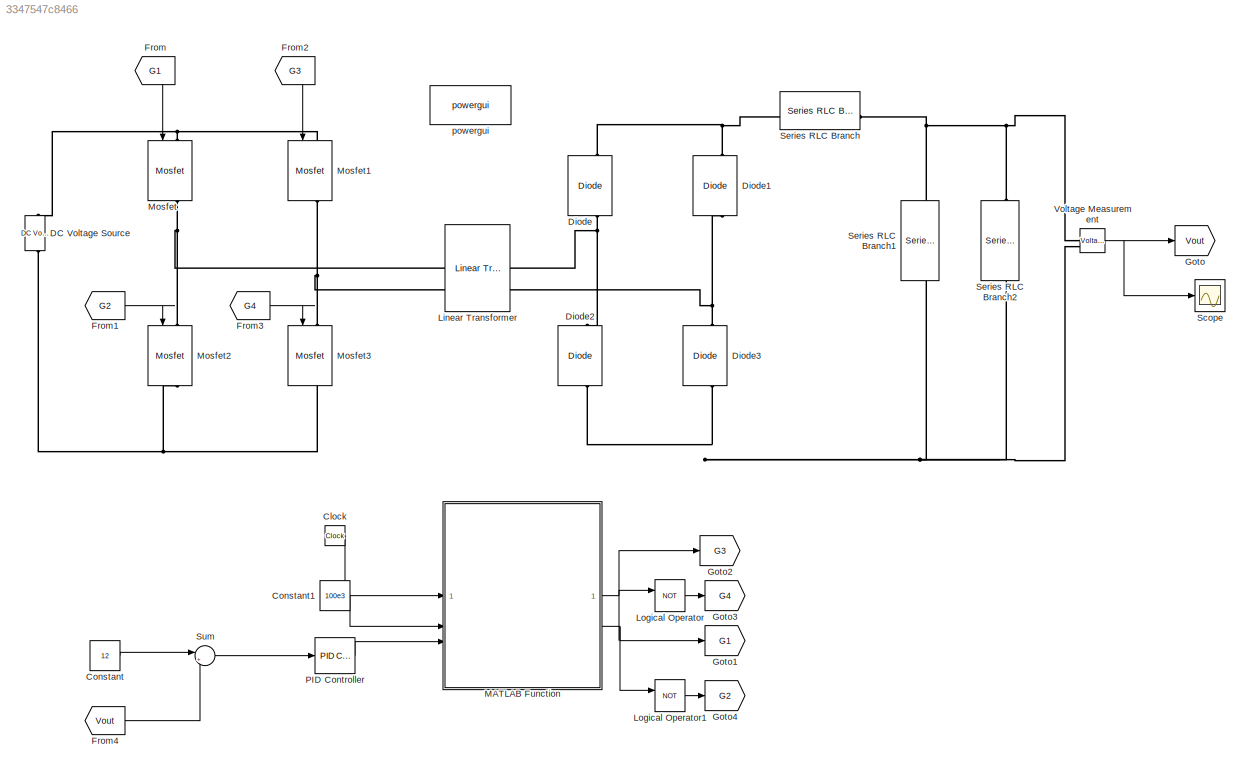
MODEL slx_3347547c8466
KIND model
CONFIG AbsTol = auto
CONFIG EnableMultiTasking = off
CONFIG FixedStep = auto
CONFIG MaxStep = auto
CONFIG MinStep = auto
CONFIG RelTol = 1e-3
CONFIG SampleTimeConstraint = Unconstrained
CONFIG SolverName = ode23t
CONFIG StartTime = 0.0
CONFIG StopTime = 0.1
BLOCK [Clock] Clock
BLOCK [Constant] Constant
  Value = 12
BLOCK [Constant] Constant1
  Value = 100e3
BLOCK [Reference] DC Voltage Source  REF=spsDCVoltageSourceLib/DC Voltage Source
  LibrarySourceBlock = sps_lib/Sources/DC Voltage Source
  SourceBlock = spsDCVoltageSourceLib/DC Voltage Source
  SourceType = DC Voltage Source
BLOCK [Reference] Diode  REF=spsDiodeLib/Diode
  LibrarySourceBlock = sps_lib/Power Electronics/Diode
  NameLocation = right
  SourceBlock = spsDiodeLib/Diode
  SourceType = Diode
BLOCK [Reference] Diode1  REF=spsDiodeLib/Diode
  LibrarySourceBlock = sps_lib/Power Electronics/Diode
  NameLocation = right
  SourceBlock = spsDiodeLib/Diode
  SourceType = Diode
BLOCK [Reference] Diode2  REF=spsDiodeLib/Diode
  LibrarySourceBlock = sps_lib/Power Electronics/Diode
  NameLocation = right
  SourceBlock = spsDiodeLib/Diode
  SourceType = Diode
BLOCK [Reference] Diode3  REF=spsDiodeLib/Diode
  LibrarySourceBlock = sps_lib/Power Electronics/Diode
  NameLocation = right
  SourceBlock = spsDiodeLib/Diode
  SourceType = Diode
BLOCK [From] From
  GotoTag = G1
BLOCK [From] From1
  GotoTag = G2
BLOCK [From] From2
  GotoTag = G3
BLOCK [From] From3
  GotoTag = G4
BLOCK [From] From4
  GotoTag = Vout
BLOCK [Goto] Goto
  GotoTag = Vout
BLOCK [Goto] Goto1
  GotoTag = G1
BLOCK [Goto] Goto2
  GotoTag = G3
BLOCK [Goto] Goto3
  GotoTag = G4
BLOCK [Goto] Goto4
  GotoTag = G2
BLOCK [Reference] Linear Transformer  REF=spsLinearTransformerLib/Linear Transformer
  LibrarySourceBlock = sps_lib/Power Grid Elements/Linear Transformer
  SourceBlock = spsLinearTransformerLib/Linear Transformer
  SourceType = Linear Transformer
BLOCK [Logic] Logical Operator
  AllPortsSameDT = off
  Operator = NOT
  OutDataTypeStr = boolean
BLOCK [Logic] Logical Operator1
  AllPortsSameDT = off
  Operator = NOT
  OutDataTypeStr = boolean
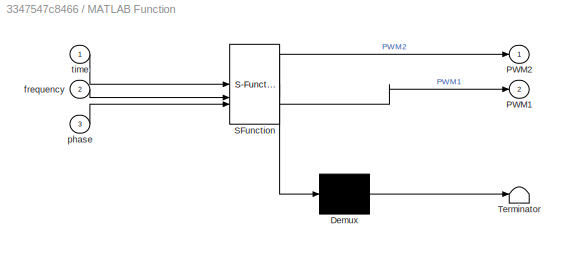
BLOCK [SubSystem] MATLAB Function
  ErrorFcn = Stateflow.Translate.translate
  LibrarySourceBlock = simulink/User-Defined\nFunctions/MATLAB Function
  PermitHierarchicalResolution = ExplicitOnly
  SFBlockType = MATLAB Function
  TreatAsAtomicUnit = on
BLOCK [Demux] MATLAB Function/ Demux 
  Outputs = 1
BLOCK [S-Function] MATLAB Function/ SFunction 
  EnableBusSupport = on
  FunctionName = sf_sfun
  PortCounts = [3 3]
  SFcnIsStateOwnerBlock = off
  SFunctionDeploymentMode = off
  Tag = Stateflow S-Function 2
BLOCK [Terminator] MATLAB Function/ Terminator 
BLOCK [Outport] MATLAB Function/PWM1
  Port = 2
BLOCK [Outport] MATLAB Function/PWM2
BLOCK [Inport] MATLAB Function/frequency
  Port = 2
BLOCK [Inport] MATLAB Function/phase
  Port = 3
BLOCK [Inport] MATLAB Function/time
BLOCK [Reference] Mosfet  REF=spsMosfetLib/Mosfet
  LibrarySourceBlock = sps_lib/Power Electronics/Mosfet
  NameLocation = left
  SourceBlock = spsMosfetLib/Mosfet
  SourceType = Mosfet
BLOCK [Reference] Mosfet1  REF=spsMosfetLib/Mosfet
  LibrarySourceBlock = sps_lib/Power Electronics/Mosfet
  NameLocation = left
  SourceBlock = spsMosfetLib/Mosfet
  SourceType = Mosfet
BLOCK [Reference] Mosfet2  REF=spsMosfetLib/Mosfet
  LibrarySourceBlock = sps_lib/Power Electronics/Mosfet
  NameLocation = left
  SourceBlock = spsMosfetLib/Mosfet
  SourceType = Mosfet
BLOCK [Reference] Mosfet3  REF=spsMosfetLib/Mosfet
  LibrarySourceBlock = sps_lib/Power Electronics/Mosfet
  NameLocation = left
  SourceBlock = spsMosfetLib/Mosfet
  SourceType = Mosfet
BLOCK [Reference] PID Controller  REF=slpidlib/PID Controller
  LibrarySourceBlock = simulink/Continuous/PID Controller
  SourceBlock = slpidlib/PID Controller
  SourceType = PID 1dof
BLOCK [Scope] Scope
  Floating = off
  NumInputPorts = 1
  ScopeSpecificationString = Simulink.scopes.TimeScopeBlockCfg('CurrentConfiguration', extmgr.ConfigurationSet(extmgr.Configuration('Core','General UI',true),extmgr.Configuration('Core','Source UI',true),extmgr.Configuration('Sources','WiredSimulink',true),extmgr.Configuration('Visuals','Time Domain',true,'SerializedDisplays',{struct('MinYLimReal','-1.90898','MaxYLimReal','17.18083','YLabelReal','','MinYLimMag','0.00000','Max...<+1374ch>
BLOCK [Reference] Series RLC Branch  REF=spsSeriesRLCBranchLib/Series RLC Branch
  LibrarySourceBlock = sps_lib/Passives/Series RLC Branch
  SourceBlock = spsSeriesRLCBranchLib/Series RLC Branch
  SourceType = Series RLC Branch
BLOCK [Reference] Series RLC Branch1  REF=spsSeriesRLCBranchLib/Series RLC Branch
  LibrarySourceBlock = sps_lib/Passives/Series RLC Branch
  NameLocation = left
  SourceBlock = spsSeriesRLCBranchLib/Series RLC Branch
  SourceType = Series RLC Branch
BLOCK [Reference] Series RLC Branch2  REF=spsSeriesRLCBranchLib/Series RLC Branch
  LibrarySourceBlock = sps_lib/Passives/Series RLC Branch
  NameLocation = left
  SourceBlock = spsSeriesRLCBranchLib/Series RLC Branch
  SourceType = Series RLC Branch
BLOCK [Sum] Sum
  Inputs = |+-
BLOCK [Reference] Voltage Measurement  REF=spsVoltageMeasurementLib/Voltage Measurement
  LibrarySourceBlock = sps_lib/Sensors and Measurements/Voltage Measurement
  SourceBlock = spsVoltageMeasurementLib/Voltage Measurement
  SourceType = Voltage Measurement
  UserDataPersistent = on
BLOCK [Reference] powergui  REF=sps_lib/powergui
  Priority = 1
  SourceBlock = sps_lib/powergui
  SourceType = PSB option menu block
LINE Clock:1 -> MATLAB Function:1
LINE Constant1:1 -> MATLAB Function:2
LINE Constant:1 -> Sum:1
LINE From1:1 -> Mosfet2:1
LINE From2:1 -> Mosfet1:1
LINE From3:1 -> Mosfet3:1
LINE From4:1 -> Sum:2
LINE From:1 -> Mosfet:1
LINE Logical Operator1:1 -> Goto4:1
LINE Logical Operator:1 -> Goto3:1
NET MATLAB Function:1 -> Goto2:1, Logical Operator:1
NET MATLAB Function:2 -> Goto1:1, Logical Operator1:1
LINE PID Controller:1 -> MATLAB Function:3
LINE Sum:1 -> PID Controller:1
NET Voltage Measurement:1 -> Goto:1, Scope:1
PNET net1: DC Voltage Source:LConn1 -- Mosfet2:RConn1 -- Mosfet3:RConn1
PNET net2: DC Voltage Source:RConn1 -- Mosfet1:LConn1 -- Mosfet:LConn1
PNET net3: Diode1:LConn1 -- Diode3:RConn1 -- Linear Transformer:RConn2
PNET net4: Diode1:RConn1 -- Diode:RConn1 -- Series RLC Branch:LConn1
PNET net5: Diode2:LConn1 -- Diode3:LConn1 -- Series RLC Branch1:RConn1 -- Series RLC Branch2:RConn1 -- Voltage Measurement:LConn2
PNET net6: Diode2:RConn1 -- Diode:LConn1 -- Linear Transformer:RConn1
PNET net7: Linear Transformer:LConn1 -- Mosfet2:LConn1 -- Mosfet:RConn1
PNET net8: Linear Transformer:LConn2 -- Mosfet1:RConn1 -- Mosfet3:LConn1
PNET net9: Series RLC Branch1:LConn1 -- Series RLC Branch2:LConn1 -- Series RLC Branch:RConn1 -- Voltage Measurement:LConn1
note: NET lines group one-source signal fan-out (src -> all destinations, sorted); 1:1 wires keep LINE; PNET lines group multi-terminal physical nets as a canonical sorted terminal list (undirected conserving connections); 2-terminal nets keep the pairwise PLINE form
CHART MATLAB Function states=1 transitions=1
  STATE_LABEL 'eML_blk_kernel()'
  STATE_LABEL 'SCRIPT:\nfunction [PWM2,PWM1] = fcn(time,frequency,phase)\n\nTswitching = 1/frequency;\nPWM1 = 0;\nPWM2 = 0;\ny1 = mod(time,Tswitching);\nif y1 < Tswitching/2\n    PWM1 = 1;\nend\nt_phi = Tswitching*phase/360;\ny2 = mod(time+t_phi, Tswitching);\n\nif y2 < Tswitching/2\n    PWM2 = 1;\nend\n'
CHART  states=0 transitions=0
